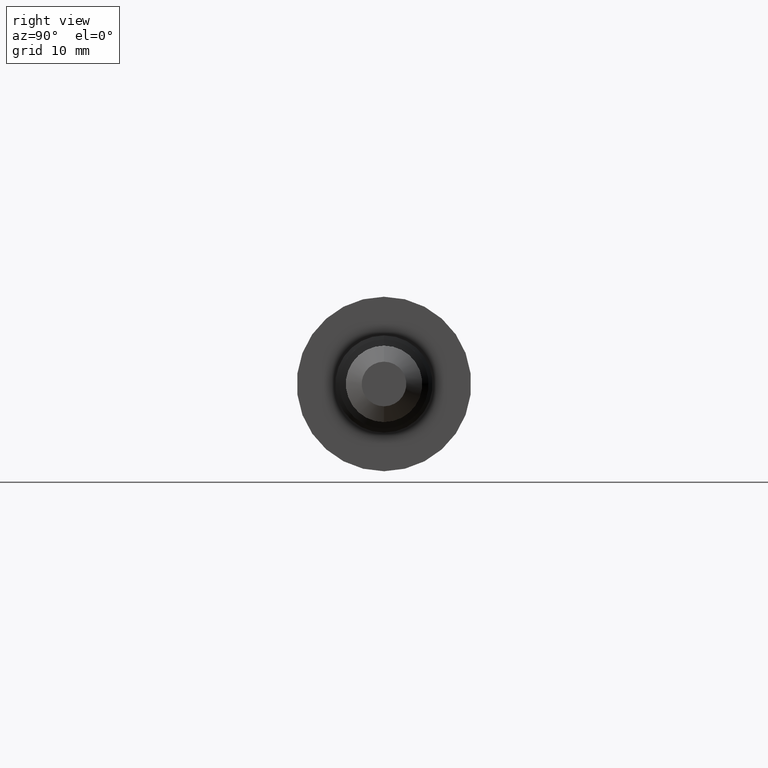
[diagram: clean part render]
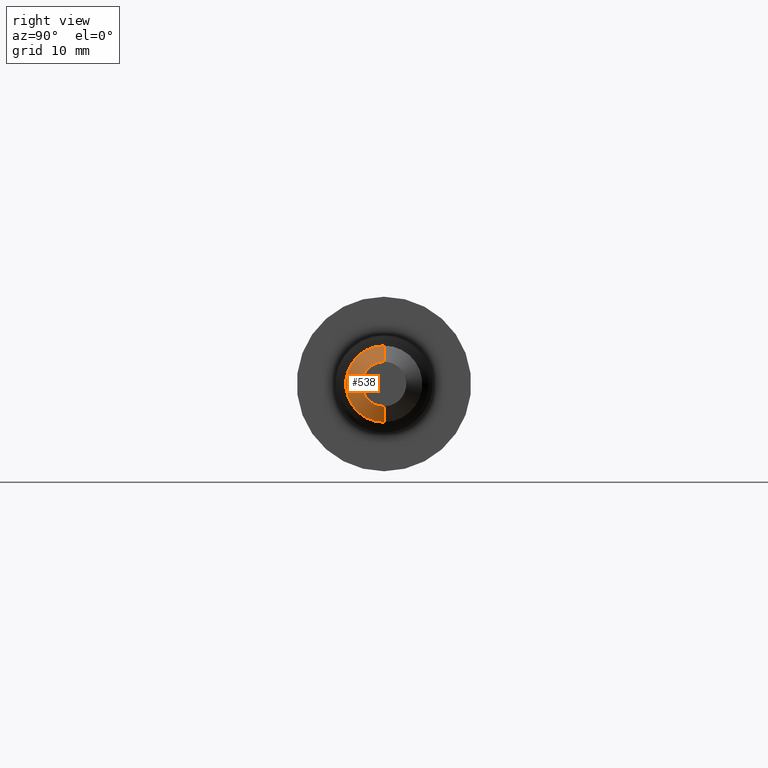
[diagram: same view with one face highlighted and labeled with its STEP entity id]
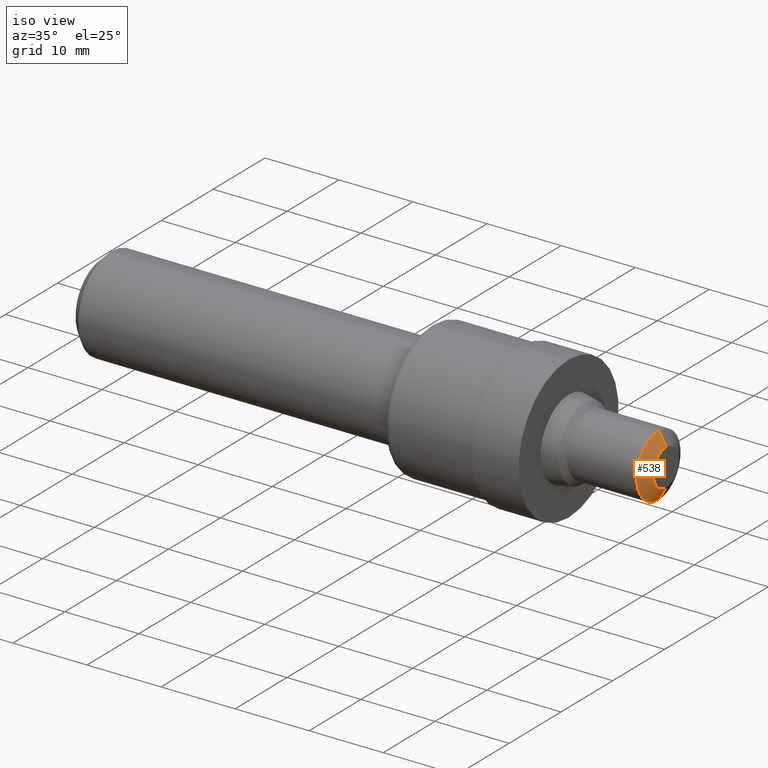
[diagram: same view with one face highlighted and labeled with its STEP entity id]
A machine part, right view. The second image highlights one B-rep face of the part: STEP entity #538.
A second angle (iso view) of the same face is appended — the face is thin or edge-on in the first view.
In plain terms, the highlighted conical surface has half-angle 60 deg.
Its self-contained STEP definition (entity closure, byte-faithful):
#32 = ORIENTED_EDGE ( 'NONE', *, *, #160, .T. ) ;
#42 = AXIS2_PLACEMENT_3D ( 'NONE', #603, #224, #391 ) ;
#47 = VECTOR ( 'NONE', #131, 39.37007874015748900 ) ;
#50 = EDGE_LOOP ( 'NONE', ( #596, #269, #32, #586 ) ) ;
#57 = VECTOR ( 'NONE', #611, 39.37007874015748900 ) ;
#69 = CARTESIAN_POINT ( 'NONE',  ( 3.000000000000000400, 0.0000000000000000000, 0.09721796769724436200 ) ) ;
#74 = DIRECTION ( 'NONE',  ( 0.0000000000000000000, 0.0000000000000000000, 1.000000000000000000 ) ) ;
#79 = FACE_OUTER_BOUND ( 'NONE', #50, .T. ) ;
#101 = EDGE_CURVE ( 'NONE', #459, #584, #371, .T. ) ;
#131 = DIRECTION ( 'NONE',  ( -0.4999999999999979500, 1.060575238724908000E-016, -0.8660254037844397100 ) ) ;
#160 = EDGE_CURVE ( 'NONE', #584, #600, #197, .T. ) ;
#197 = LINE ( 'NONE', #69, #57 ) ;
#199 = EDGE_CURVE ( 'NONE', #459, #365, #473, .T. ) ;
#224 = DIRECTION ( 'NONE',  ( -1.000000000000000000, -0.0000000000000000000, -0.0000000000000000000 ) ) ;
#255 = DIRECTION ( 'NONE',  ( 0.0000000000000000000, 0.0000000000000000000, 1.000000000000000000 ) ) ;
#265 = CARTESIAN_POINT ( 'NONE',  ( 3.000000000000000400, 1.190576729600410900E-017, -0.09721796769724436200 ) ) ;
#269 = ORIENTED_EDGE ( 'NONE', *, *, #101, .T. ) ;
#299 = CARTESIAN_POINT ( 'NONE',  ( 3.000000000000000400, 1.614806825090377000E-017, -0.09721796769724436200 ) ) ;
#309 = CARTESIAN_POINT ( 'NONE',  ( 3.000000000000000400, 0.0000000000000000000, 0.0000000000000000000 ) ) ;
#319 = CIRCLE ( 'NONE', #42, 0.1665000000000000100 ) ;
#327 = CARTESIAN_POINT ( 'NONE',  ( 2.960000000000000000, 0.0000000000000000000, 0.1665000000000000100 ) ) ;
#365 = VERTEX_POINT ( 'NONE', #565 ) ;
#371 = CIRCLE ( 'NONE', #456, 0.09721796769724436200 ) ;
#391 = DIRECTION ( 'NONE',  ( 0.0000000000000000000, 0.0000000000000000000, 1.000000000000000000 ) ) ;
#456 = AXIS2_PLACEMENT_3D ( 'NONE', #543, #501, #74 ) ;
#459 = VERTEX_POINT ( 'NONE', #299 ) ;
#473 = LINE ( 'NONE', #265, #47 ) ;
#475 = DIRECTION ( 'NONE',  ( -1.000000000000000000, -0.0000000000000000000, -0.0000000000000000000 ) ) ;
#501 = DIRECTION ( 'NONE',  ( -1.000000000000000000, -0.0000000000000000000, -0.0000000000000000000 ) ) ;
#538 = ADVANCED_FACE ( 'NONE', ( #79 ), #614, .T. ) ;
#543 = CARTESIAN_POINT ( 'NONE',  ( 3.000000000000000400, 0.0000000000000000000, 0.0000000000000000000 ) ) ;
#556 = AXIS2_PLACEMENT_3D ( 'NONE', #309, #475, #255 ) ;
#565 = CARTESIAN_POINT ( 'NONE',  ( 2.960000000000000000, 2.039036920580343200E-017, -0.1665000000000000100 ) ) ;
#584 = VERTEX_POINT ( 'NONE', #594 ) ;
#586 = ORIENTED_EDGE ( 'NONE', *, *, #609, .F. ) ;
#594 = CARTESIAN_POINT ( 'NONE',  ( 3.000000000000000400, 0.0000000000000000000, 0.09721796769724436200 ) ) ;
#596 = ORIENTED_EDGE ( 'NONE', *, *, #199, .F. ) ;
#600 = VERTEX_POINT ( 'NONE', #327 ) ;
#603 = CARTESIAN_POINT ( 'NONE',  ( 2.960000000000000000, 0.0000000000000000000, 0.0000000000000000000 ) ) ;
#609 = EDGE_CURVE ( 'NONE', #365, #600, #319, .T. ) ;
#611 = DIRECTION ( 'NONE',  ( -0.4999999999999979500, 0.0000000000000000000, 0.8660254037844397100 ) ) ;
#614 = CONICAL_SURFACE ( 'NONE', #556, 0.09721796769724436200, 1.047197551196600100 ) ;